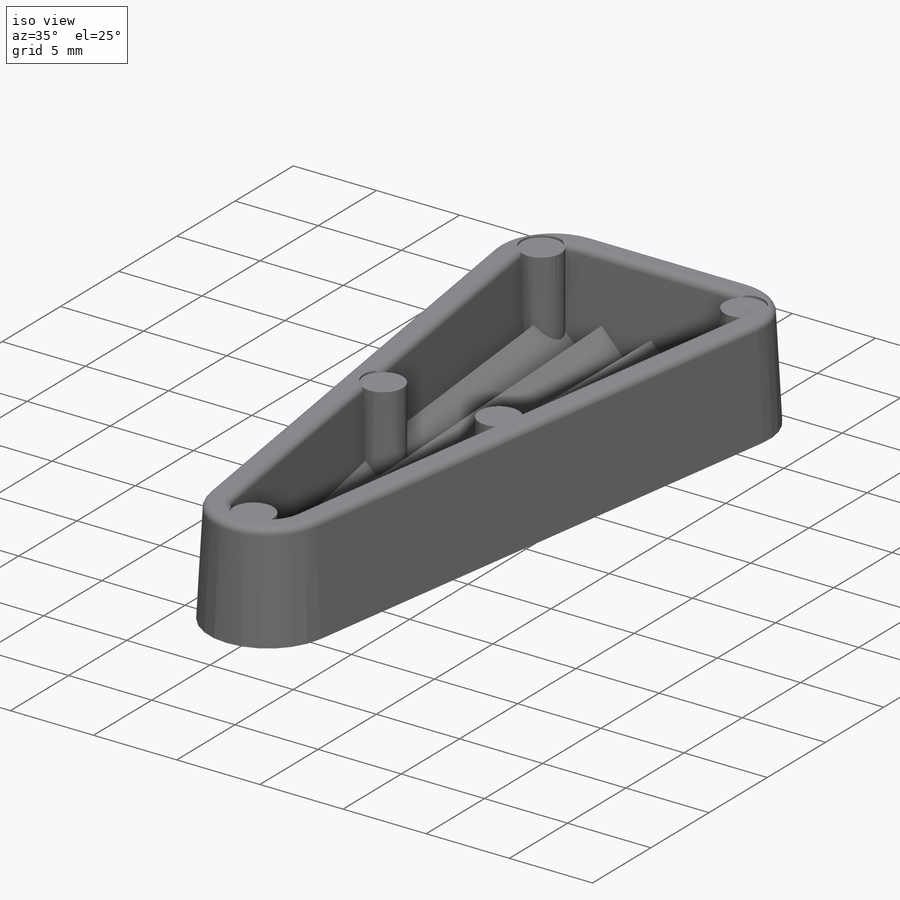
[diagram: iso view]
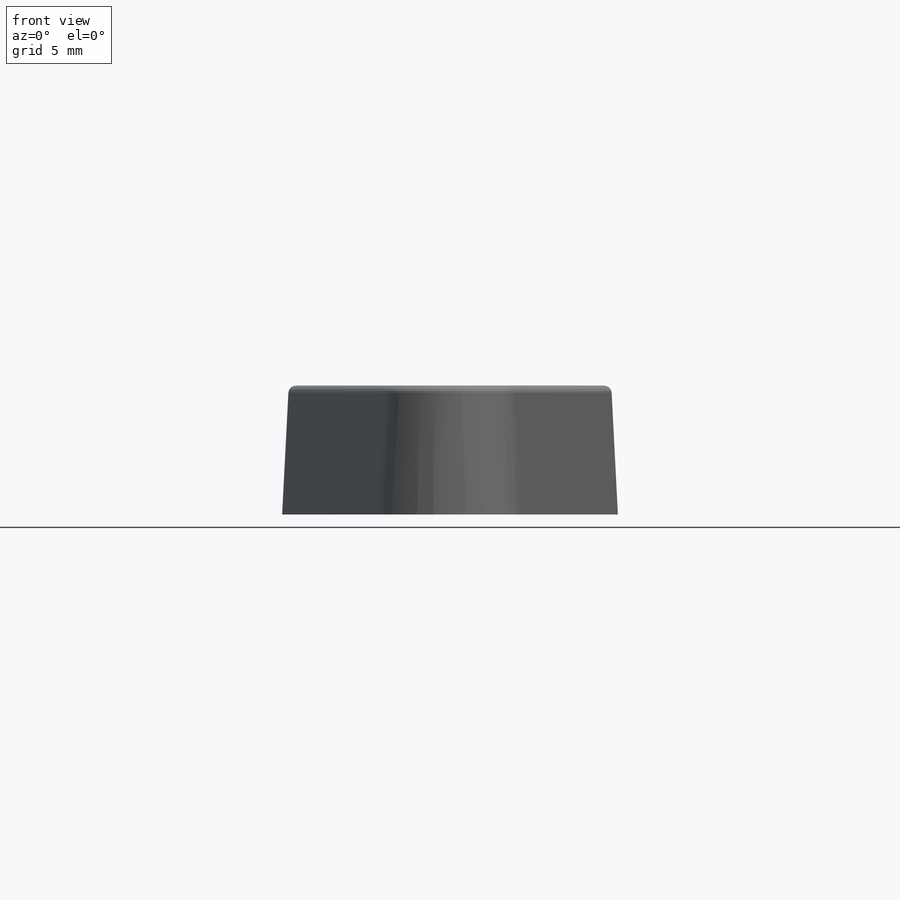
[diagram: front view]
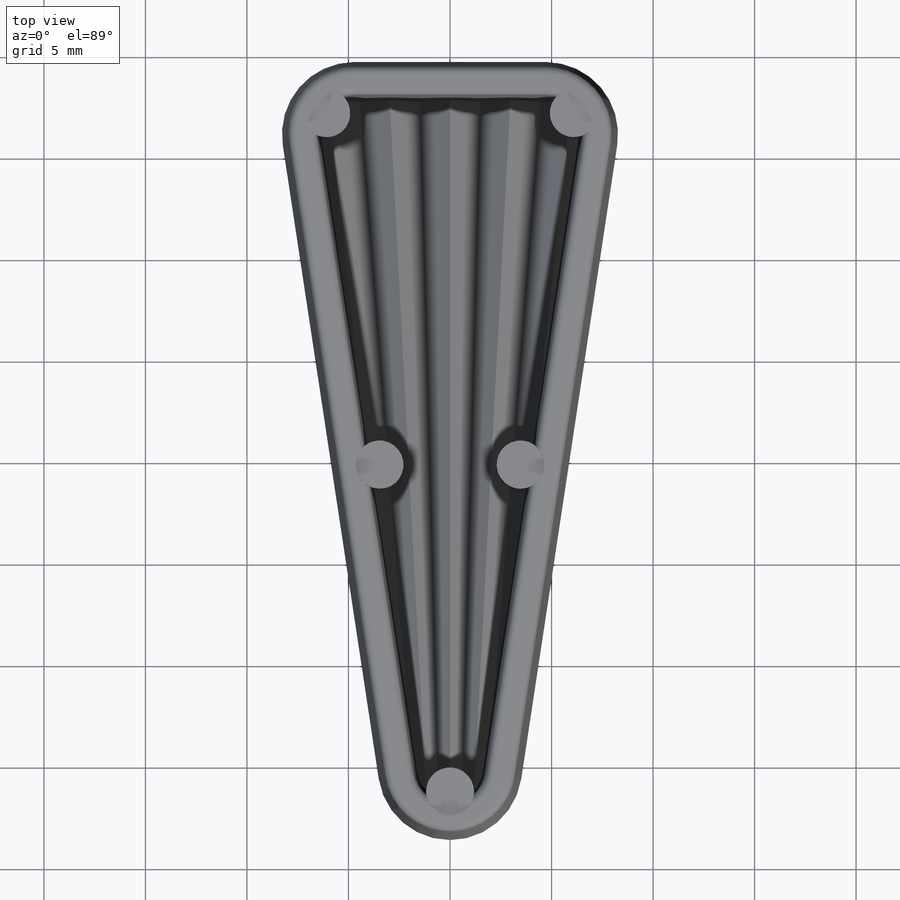
[diagram: top view]
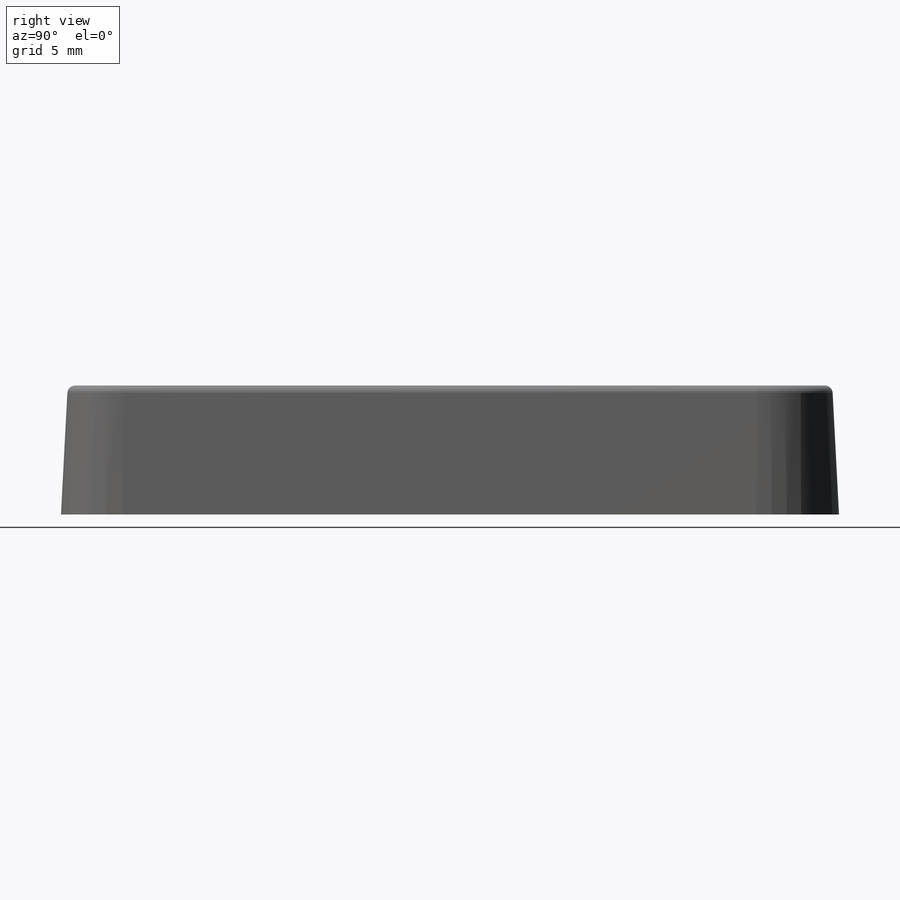
[diagram: right view]
SOLIDWORKS PART (.sldprt)
format: sldprt  version: not decoded by parser v0  size: 488,448 bytes
history: native  units: mm
features: sketch x9, extrude x5, plane x3, mirror x2, cut_extrude x2, material x1, fillet x1 (+12 scaffold rows collapsed)
feature tree (35):
  scaffold x12  (default folders/planes/origin — collapsed)
  material  "Material <not specified>"
  sketch  "Sketch1"  dims[c1.D1=7.1374mm c1.D4=3.5687mm c1.D3=~3.96875mm c1.D2=38.354mm c2.D3=16.5862mm c2.D5=20.2692mm c2.D6=~55.742345mm c3.D6=3.0deg c3.D7=~66.068495mm c4.D7=3.0deg]
  extrude  "Boss-Extrude1"  Depth=1.016mm
  plane  "Plane1"
  sketch  "Sketch2"  dims[c1.D1=1.524mm c1.D2=1.4732mm c2.D2=90.0deg]
  extrude  "Boss-Extrude2"  Depth=38.1mm
  plane  "Plane2"
  sketch  "Sketch3"  dims[c1.D1=~1.837644mm c2.D1=90.0deg c2.D2=1.524mm]
  extrude  "Boss-Extrude3"  Depth=48.26mm
  plane  "Plane3"
  sketch  "Sketch4"  dims[c1.D1=~1.56296mm c2.D1=90.0deg c2.D2=1.524mm]
  extrude  "Boss-Extrude4"  Depth=45.72mm
  mirror  "Mirror1"
  sketch  "Sketch5"  dims[D1=0.0mm]
  cut_extrude  "Cut-Extrude1"  Depth=45.72mm
  sketch  "Sketch6"  dims[c1.D1=0.0mm c2.D1=6.35mm c2.D5=2.032mm c2.D6=2.54mm c2.D7=5.0mm c3.D1=3.0deg]
  mirror  "Draft3"
  fillet  "Fillet1"  Radius=0.381mm
  sketch  "Sketch7"  dims[c1.D1=2.3622mm c1.D2=2.3622mm c1.D3=2.3622mm c1.D4=2.3622mm c1.D5=2.3622mm c2.D2=1.27mm c2.D3=6.096mm c2.D4=~32.154102mm c2.D5=~17.51392mm]
  extrude  "Boss-Extrude5"  Depth=6.096mm
  cut_extrude  "Cut-Extrude3"  [1 undecoded]
  sketch  "Sketch7<2>"  dims[D1=6.35mm D19=0.127mm]
  sketch  "Sketch8- Offset .005"  dims[D1=0.127mm]
decode coverage: 16 of 19 modeling features carry decoded parameters
note: ~ marks probable driven/reference dimensions
note: 1 parameter value undecoded
note: suppression state not decoded; provenance and decode notes live in map.json
